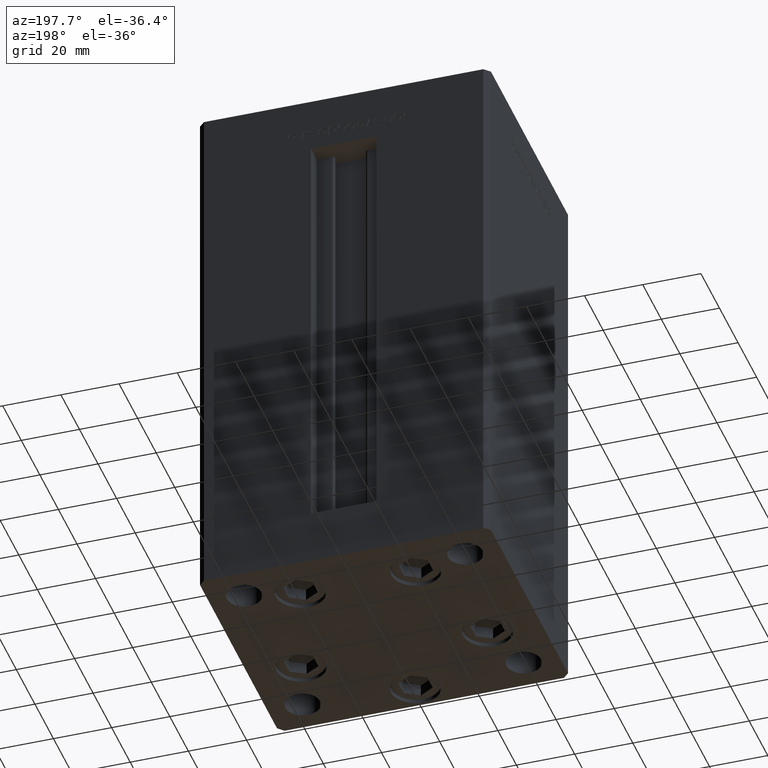
[diagram: clean part render]
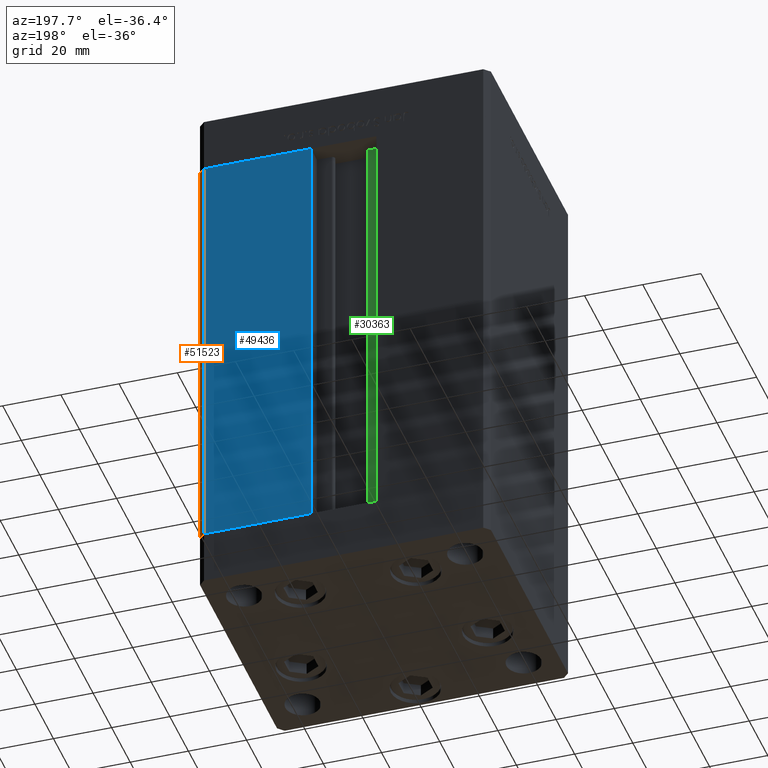
[diagram: same view with three faces highlighted in distinct colors, each labeled with its STEP entity id]
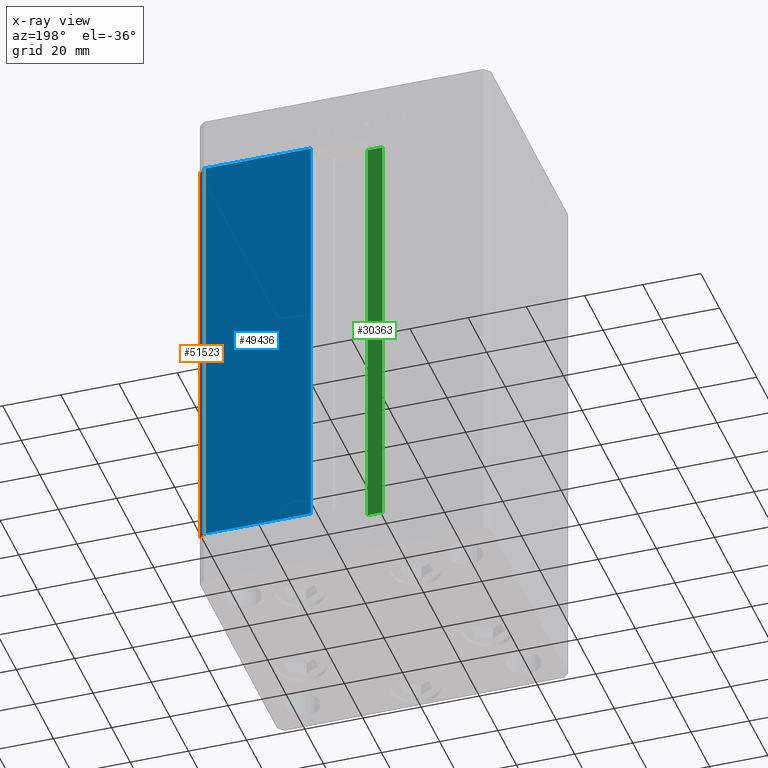
[diagram: x-ray of the same camera — body ghosted, the three highlighted faces saturated]
A machine part, auxiliary view with three faces highlighted in distinct colors.
The next image is the same camera in x-ray (body ghosted, the three faces saturated) — at least one of them is partly hidden behind the body in this view.
Their STEP definitions:

[orange] entity #51523 — the highlighted planar face has unit normal (0.7071, 0.7071, 0).
#348 = VECTOR ( 'NONE', #17795, 1000.000000000000000 ) ;
#2368 = LINE ( 'NONE', #30606, #48665 ) ;
#4951 = EDGE_CURVE ( 'NONE', #15730, #28199, #50657, .T. ) ;
#6062 = DIRECTION ( 'NONE',  ( 0.7071067811865487940, -0.7071067811865463515, 0.000000000000000000 ) ) ;
#8405 = CARTESIAN_POINT ( 'NONE',  ( 48.00000000000000711, 43.50000000000000000, 0.000000000000000000 ) ) ;
#8758 = EDGE_LOOP ( 'NONE', ( #32662, #19176, #45643, #16114 ) ) ;
#13102 = EDGE_CURVE ( 'NONE', #15730, #45191, #47946, .T. ) ;
#13612 = FACE_OUTER_BOUND ( 'NONE', #8758, .T. ) ;
#13672 = CARTESIAN_POINT ( 'NONE',  ( 48.00000000000000711, 43.50000000000000000, 148.5000000000000000 ) ) ;
#15036 = CARTESIAN_POINT ( 'NONE',  ( 48.00000000000000711, 43.50000000000000000, 148.5000000000000000 ) ) ;
#15730 = VERTEX_POINT ( 'NONE', #13672 ) ;
#16002 = AXIS2_PLACEMENT_3D ( 'NONE', #21014, #42098, #50271 ) ;
#16114 = ORIENTED_EDGE ( 'NONE', *, *, #30303, .T. ) ;
#16839 = CARTESIAN_POINT ( 'NONE',  ( 50.00000000000001421, 41.49999999999999289, 0.000000000000000000 ) ) ;
#17795 = DIRECTION ( 'NONE',  ( -0.000000000000000000, -0.000000000000000000, -1.000000000000000000 ) ) ;
#19176 = ORIENTED_EDGE ( 'NONE', *, *, #4951, .F. ) ;
#21014 = CARTESIAN_POINT ( 'NONE',  ( 48.00000000000000711, 43.50000000000000000, 148.5000000000000000 ) ) ;
#23096 = CARTESIAN_POINT ( 'NONE',  ( 50.00000000000001421, 41.49999999999999289, 148.5000000000000000 ) ) ;
#23930 = DIRECTION ( 'NONE',  ( 0.7071067811865487940, -0.7071067811865463515, 0.000000000000000000 ) ) ;
#26503 = CARTESIAN_POINT ( 'NONE',  ( 50.00000000000001421, 41.49999999999999289, 148.5000000000000000 ) ) ;
#27231 = VECTOR ( 'NONE', #23930, 1000.000000000000000 ) ;
#28199 = VERTEX_POINT ( 'NONE', #8405 ) ;
#28412 = CARTESIAN_POINT ( 'NONE',  ( 48.00000000000000711, 43.50000000000000000, 148.5000000000000000 ) ) ;
#29705 = PLANE ( 'NONE',  #16002 ) ;
#30303 = EDGE_CURVE ( 'NONE', #45191, #43846, #37594, .T. ) ;
#30606 = CARTESIAN_POINT ( 'NONE',  ( 48.00000000000000711, 43.50000000000000000, 0.000000000000000000 ) ) ;
#32662 = ORIENTED_EDGE ( 'NONE', *, *, #44617, .F. ) ;
#37594 = LINE ( 'NONE', #26503, #348 ) ;
#42098 = DIRECTION ( 'NONE',  ( 0.7071067811865463515, 0.7071067811865487940, -0.000000000000000000 ) ) ;
#43846 = VERTEX_POINT ( 'NONE', #16839 ) ;
#44617 = EDGE_CURVE ( 'NONE', #28199, #43846, #2368, .T. ) ;
#45191 = VERTEX_POINT ( 'NONE', #23096 ) ;
#45643 = ORIENTED_EDGE ( 'NONE', *, *, #13102, .T. ) ;
#47946 = LINE ( 'NONE', #28412, #27231 ) ;
#48665 = VECTOR ( 'NONE', #6062, 1000.000000000000000 ) ;
#50271 = DIRECTION ( 'NONE',  ( -0.7071067811865487940, 0.7071067811865463515, 0.000000000000000000 ) ) ;
#50657 = LINE ( 'NONE', #15036, #51400 ) ;
#50922 = DIRECTION ( 'NONE',  ( -0.000000000000000000, -0.000000000000000000, -1.000000000000000000 ) ) ;
#51400 = VECTOR ( 'NONE', #50922, 1000.000000000000000 ) ;
#51523 = ADVANCED_FACE ( 'NONE', ( #13612 ), #29705, .T. ) ;

[blue] entity #49436 — the highlighted planar face has unit normal (0, -1, 0).
#795 = ORIENTED_EDGE ( 'NONE', *, *, #31453, .T. ) ;
#4510 = CARTESIAN_POINT ( 'NONE',  ( -11.24999999999999822, 43.50000000000000000, 148.5000000000000000 ) ) ;
#4951 = EDGE_CURVE ( 'NONE', #15730, #28199, #50657, .T. ) ;
#7736 = CARTESIAN_POINT ( 'NONE',  ( -11.24999999999999822, 43.50000000000000000, 0.000000000000000000 ) ) ;
#8405 = CARTESIAN_POINT ( 'NONE',  ( 48.00000000000000711, 43.50000000000000000, 0.000000000000000000 ) ) ;
#11132 = LINE ( 'NONE', #21514, #12075 ) ;
#11962 = LINE ( 'NONE', #27544, #21447 ) ;
#12075 = VECTOR ( 'NONE', #27236, 1000.000000000000000 ) ;
#13672 = CARTESIAN_POINT ( 'NONE',  ( 48.00000000000000711, 43.50000000000000000, 148.5000000000000000 ) ) ;
#14234 = EDGE_CURVE ( 'NONE', #48611, #35739, #11132, .T. ) ;
#15036 = CARTESIAN_POINT ( 'NONE',  ( 48.00000000000000711, 43.50000000000000000, 148.5000000000000000 ) ) ;
#15538 = ORIENTED_EDGE ( 'NONE', *, *, #14234, .T. ) ;
#15659 = DIRECTION ( 'NONE',  ( -1.000000000000000000, 0.000000000000000000, 0.000000000000000000 ) ) ;
#15730 = VERTEX_POINT ( 'NONE', #13672 ) ;
#19632 = LINE ( 'NONE', #7736, #34935 ) ;
#21447 = VECTOR ( 'NONE', #44161, 1000.000000000000000 ) ;
#21514 = CARTESIAN_POINT ( 'NONE',  ( 11.24999999999999822, 43.50000000000000000, 0.000000000000000000 ) ) ;
#22155 = ORIENTED_EDGE ( 'NONE', *, *, #31574, .T. ) ;
#25540 = CARTESIAN_POINT ( 'NONE',  ( 11.24999999999999822, 43.50000000000000000, 0.000000000000000000 ) ) ;
#27236 = DIRECTION ( 'NONE',  ( -0.000000000000000000, -0.000000000000000000, 1.000000000000000000 ) ) ;
#27544 = CARTESIAN_POINT ( 'NONE',  ( -11.24999999999999822, 43.50000000000000000, 148.5000000000000000 ) ) ;
#28199 = VERTEX_POINT ( 'NONE', #8405 ) ;
#29398 = CARTESIAN_POINT ( 'NONE',  ( 11.24999999999999112, 43.50000000000000000, 148.5000000000000000 ) ) ;
#31453 = EDGE_CURVE ( 'NONE', #35739, #15730, #11962, .T. ) ;
#31516 = ORIENTED_EDGE ( 'NONE', *, *, #4951, .T. ) ;
#31574 = EDGE_CURVE ( 'NONE', #28199, #48611, #19632, .T. ) ;
#32217 = PLANE ( 'NONE',  #35333 ) ;
#34479 = EDGE_LOOP ( 'NONE', ( #22155, #15538, #795, #31516 ) ) ;
#34935 = VECTOR ( 'NONE', #15659, 1000.000000000000000 ) ;
#35333 = AXIS2_PLACEMENT_3D ( 'NONE', #4510, #36191, #48329 ) ;
#35739 = VERTEX_POINT ( 'NONE', #29398 ) ;
#36191 = DIRECTION ( 'NONE',  ( 0.000000000000000000, -1.000000000000000000, 0.000000000000000000 ) ) ;
#36451 = FACE_OUTER_BOUND ( 'NONE', #34479, .T. ) ;
#44161 = DIRECTION ( 'NONE',  ( 1.000000000000000000, 0.000000000000000000, 0.000000000000000000 ) ) ;
#48329 = DIRECTION ( 'NONE',  ( 0.000000000000000000, -0.000000000000000000, -1.000000000000000000 ) ) ;
#48611 = VERTEX_POINT ( 'NONE', #25540 ) ;
#49436 = ADVANCED_FACE ( 'NONE', ( #36451 ), #32217, .F. ) ;
#50657 = LINE ( 'NONE', #15036, #51400 ) ;
#50922 = DIRECTION ( 'NONE',  ( -0.000000000000000000, -0.000000000000000000, -1.000000000000000000 ) ) ;
#51400 = VECTOR ( 'NONE', #50922, 1000.000000000000000 ) ;

[green] entity #30363 — the highlighted planar face has unit normal (0, -1, 0).
#2802 = VERTEX_POINT ( 'NONE', #20987 ) ;
#3102 = CARTESIAN_POINT ( 'NONE',  ( -6.183333333333997928, 36.99999999999999289, 148.5000000000000000 ) ) ;
#7831 = LINE ( 'NONE', #23941, #31005 ) ;
#8471 = VERTEX_POINT ( 'NONE', #24338 ) ;
#12282 = ORIENTED_EDGE ( 'NONE', *, *, #43624, .F. ) ;
#12684 = DIRECTION ( 'NONE',  ( 1.000000000000000000, -0.000000000000000000, -0.000000000000000000 ) ) ;
#20006 = CARTESIAN_POINT ( 'NONE',  ( -6.183333333333997928, 36.99999999999999289, 0.000000000000000000 ) ) ;
#20987 = CARTESIAN_POINT ( 'NONE',  ( -11.24999999999999822, 36.99999999999999289, 148.5000000000000000 ) ) ;
#22463 = VECTOR ( 'NONE', #40309, 1000.000000000000000 ) ;
#23702 = LINE ( 'NONE', #20006, #22463 ) ;
#23941 = CARTESIAN_POINT ( 'NONE',  ( -11.24999999999999822, 36.99999999999999289, 0.000000000000000000 ) ) ;
#24338 = CARTESIAN_POINT ( 'NONE',  ( -11.24999999999999822, 36.99999999999999289, 0.000000000000000000 ) ) ;
#25071 = EDGE_LOOP ( 'NONE', ( #44110, #12282, #25794, #50099 ) ) ;
#25794 = ORIENTED_EDGE ( 'NONE', *, *, #41100, .T. ) ;
#28263 = LINE ( 'NONE', #36439, #36017 ) ;
#29952 = VECTOR ( 'NONE', #49733, 1000.000000000000000 ) ;
#30363 = ADVANCED_FACE ( 'NONE', ( #41803 ), #37849, .F. ) ;
#30634 = VERTEX_POINT ( 'NONE', #32528 ) ;
#31005 = VECTOR ( 'NONE', #40029, 1000.000000000000000 ) ;
#32528 = CARTESIAN_POINT ( 'NONE',  ( -6.183333333333997928, 36.99999999999999289, 0.000000000000000000 ) ) ;
#33505 = EDGE_CURVE ( 'NONE', #35154, #2802, #49217, .T. ) ;
#33629 = CARTESIAN_POINT ( 'NONE',  ( 0.000000000000000000, 36.99999999999999289, 148.5000000000000000 ) ) ;
#33879 = DIRECTION ( 'NONE',  ( 0.000000000000000000, -1.000000000000000000, -0.000000000000000000 ) ) ;
#35154 = VERTEX_POINT ( 'NONE', #3102 ) ;
#36017 = VECTOR ( 'NONE', #12684, 1000.000000000000000 ) ;
#36439 = CARTESIAN_POINT ( 'NONE',  ( -6.183333333333997928, 36.99999999999999289, 0.000000000000000000 ) ) ;
#37188 = EDGE_CURVE ( 'NONE', #30634, #35154, #23702, .T. ) ;
#37849 = PLANE ( 'NONE',  #43338 ) ;
#38633 = CARTESIAN_POINT ( 'NONE',  ( -6.183333333333997928, 36.99999999999999289, 0.000000000000000000 ) ) ;
#40029 = DIRECTION ( 'NONE',  ( -0.000000000000000000, -0.000000000000000000, 1.000000000000000000 ) ) ;
#40309 = DIRECTION ( 'NONE',  ( -0.000000000000000000, -0.000000000000000000, 1.000000000000000000 ) ) ;
#41100 = EDGE_CURVE ( 'NONE', #8471, #2802, #7831, .T. ) ;
#41803 = FACE_OUTER_BOUND ( 'NONE', #25071, .T. ) ;
#43338 = AXIS2_PLACEMENT_3D ( 'NONE', #38633, #33879, #49977 ) ;
#43624 = EDGE_CURVE ( 'NONE', #8471, #30634, #28263, .T. ) ;
#44110 = ORIENTED_EDGE ( 'NONE', *, *, #37188, .F. ) ;
#49217 = LINE ( 'NONE', #33629, #29952 ) ;
#49733 = DIRECTION ( 'NONE',  ( -1.000000000000000000, 0.000000000000000000, 0.000000000000000000 ) ) ;
#49977 = DIRECTION ( 'NONE',  ( 0.000000000000000000, 0.000000000000000000, -1.000000000000000000 ) ) ;
#50099 = ORIENTED_EDGE ( 'NONE', *, *, #33505, .F. ) ;